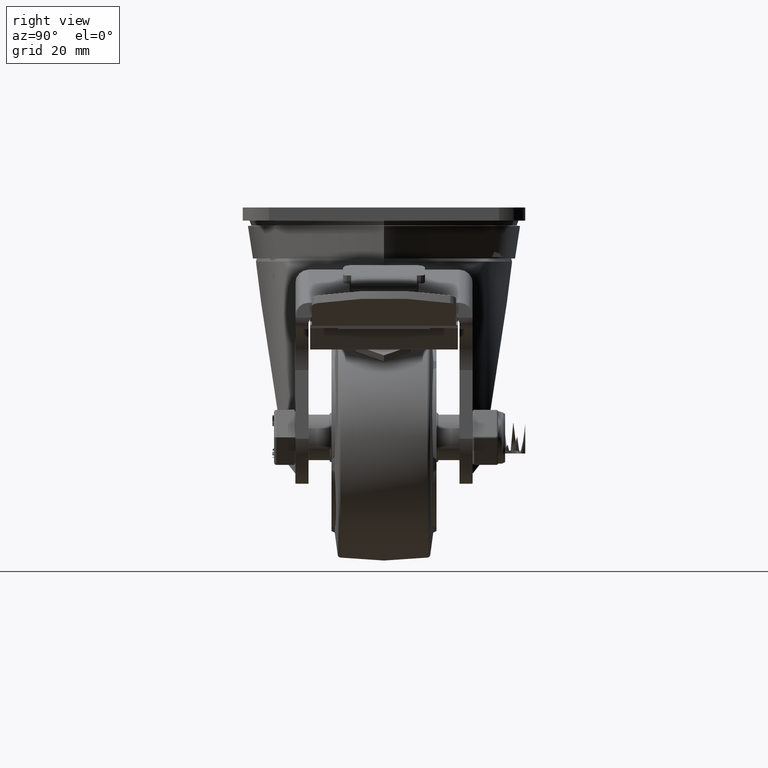
[diagram: clean part render]
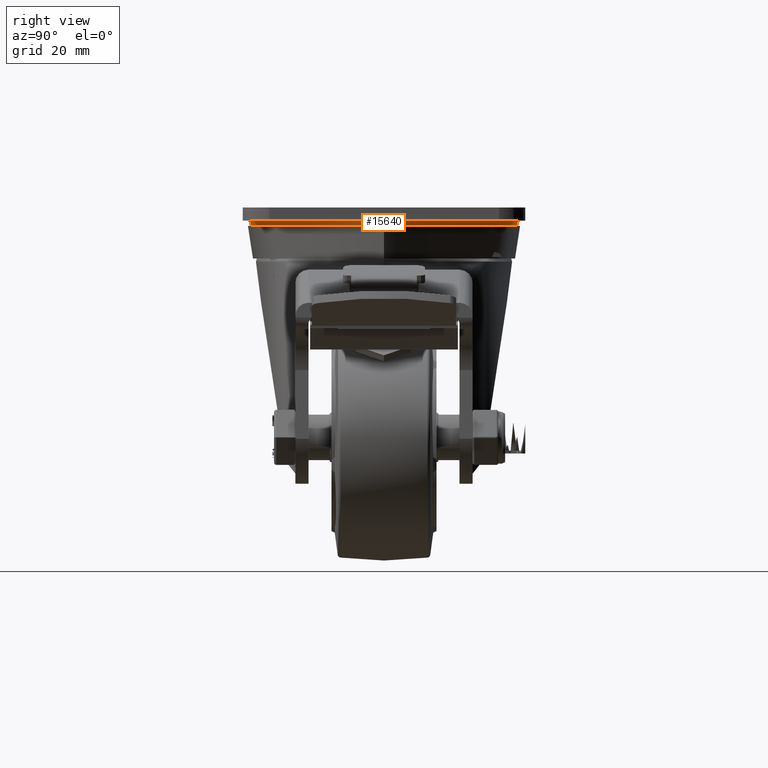
[diagram: same view with one face highlighted and labeled with its STEP entity id]
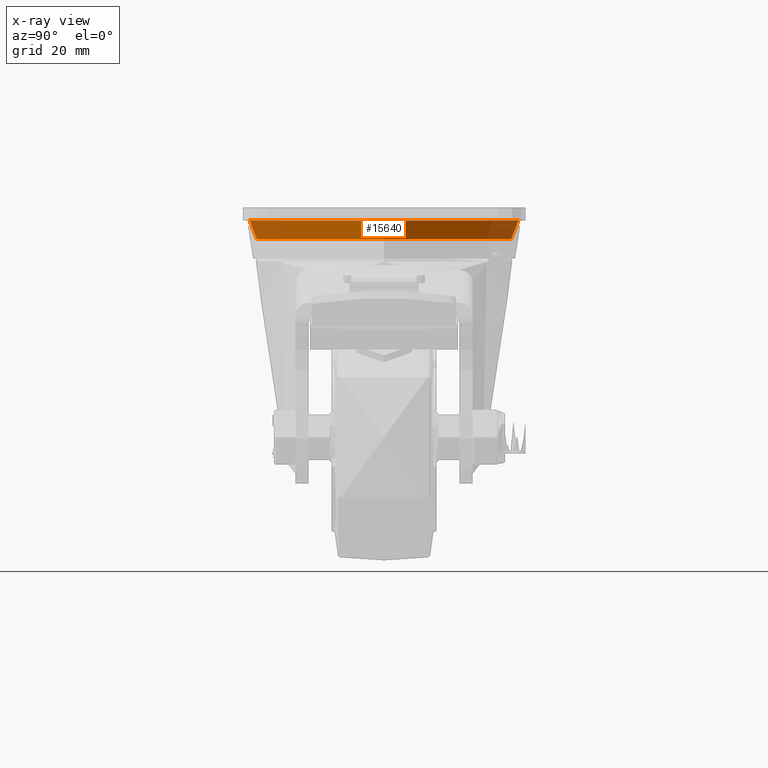
[diagram: x-ray of the same camera — body ghosted, the highlighted face saturated]
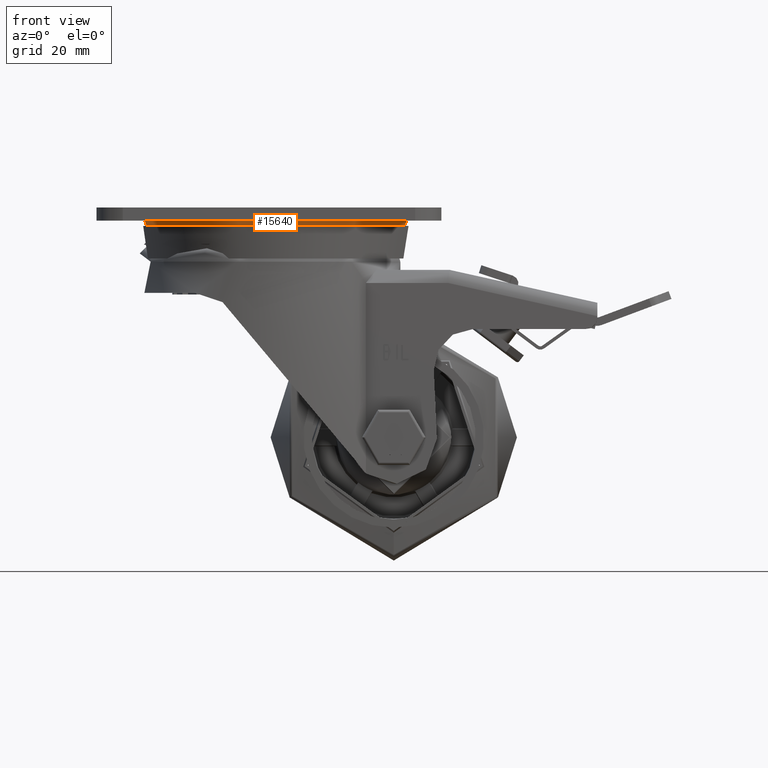
[diagram: same view with one face highlighted and labeled with its STEP entity id]
A machine part, right view. The second image highlights one B-rep face of the part: STEP entity #15640.
The next image is the same camera in x-ray: the body ghosted, the highlighted face saturated — about 0% of this face is hidden behind the body in this view.
A second angle (front view) of the same face is appended — the face is thin or edge-on in the first view.
In plain terms, the highlighted conical surface has half-angle 21.801 deg.
Its self-contained STEP definition (entity closure, byte-faithful):
#1462=CONICAL_SURFACE('',#16902,40.5,0.380506377112364);
#1570=FACE_OUTER_BOUND('',#2535,.T.);
#2535=EDGE_LOOP('',(#10609,#10610,#10611,#10612));
#3582=LINE('',#23648,#4674);
#4674=VECTOR('',#18853,40.5);
#5779=CIRCLE('',#16903,42.);
#5780=CIRCLE('',#16904,39.7543311883751);
#6679=VERTEX_POINT('',#23645);
#6680=VERTEX_POINT('',#23647);
#8185=EDGE_CURVE('',#6679,#6679,#5779,.T.);
#8186=EDGE_CURVE('',#6679,#6680,#3582,.T.);
#8187=EDGE_CURVE('',#6680,#6680,#5780,.T.);
#10609=ORIENTED_EDGE('',*,*,#8185,.F.);
#10610=ORIENTED_EDGE('',*,*,#8186,.T.);
#10611=ORIENTED_EDGE('',*,*,#8187,.F.);
#10612=ORIENTED_EDGE('',*,*,#8186,.F.);
#15640=ADVANCED_FACE('',(#1570),#1462,.T.);
#16902=AXIS2_PLACEMENT_3D('',#23644,#18849,#18850);
#16903=AXIS2_PLACEMENT_3D('',#23646,#18851,#18852);
#16904=AXIS2_PLACEMENT_3D('',#23649,#18854,#18855);
#18849=DIRECTION('center_axis',(0.,0.,1.));
#18850=DIRECTION('ref_axis',(-1.,0.,0.));
#18851=DIRECTION('center_axis',(0.,0.,1.));
#18852=DIRECTION('ref_axis',(-1.,0.,0.));
#18853=DIRECTION('',(-0.371390676354103,-4.54822403030223E-17,-0.92847669088526));
#18854=DIRECTION('center_axis',(-2.18180437718453E-16,2.47224639879891E-32,
-1.));
#18855=DIRECTION('ref_axis',(-1.,6.12323399573676E-17,2.18180437718453E-16));
#23644=CARTESIAN_POINT('Origin',(0.,0.,-7.75));
#23645=CARTESIAN_POINT('',(42.,5.14351655641888E-15,-4.));
#23646=CARTESIAN_POINT('Origin',(0.,0.,-4.));
#23647=CARTESIAN_POINT('',(39.7543311883751,-9.73700288841746E-15,-9.61417202906232));
#23648=CARTESIAN_POINT('',(40.5,4.95981953654678E-15,-7.75));
#23649=CARTESIAN_POINT('Origin',(-6.93889390390723E-15,-2.43425072210437E-15,
-9.61417202906232));